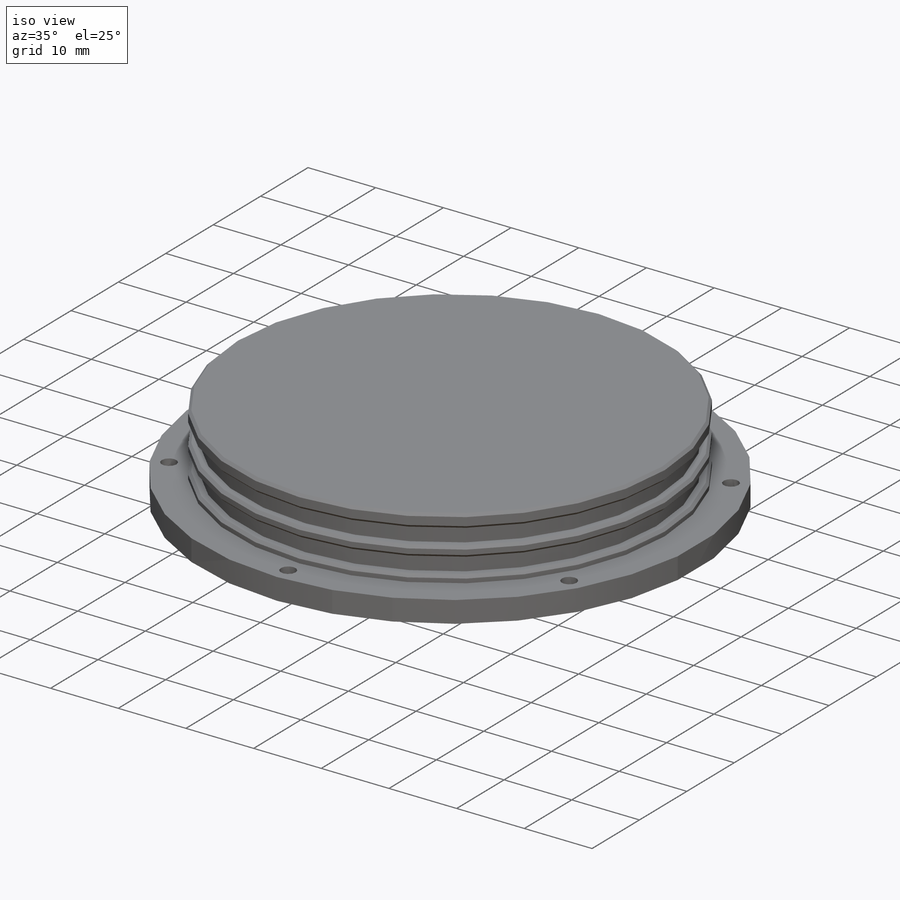
[diagram: iso view]
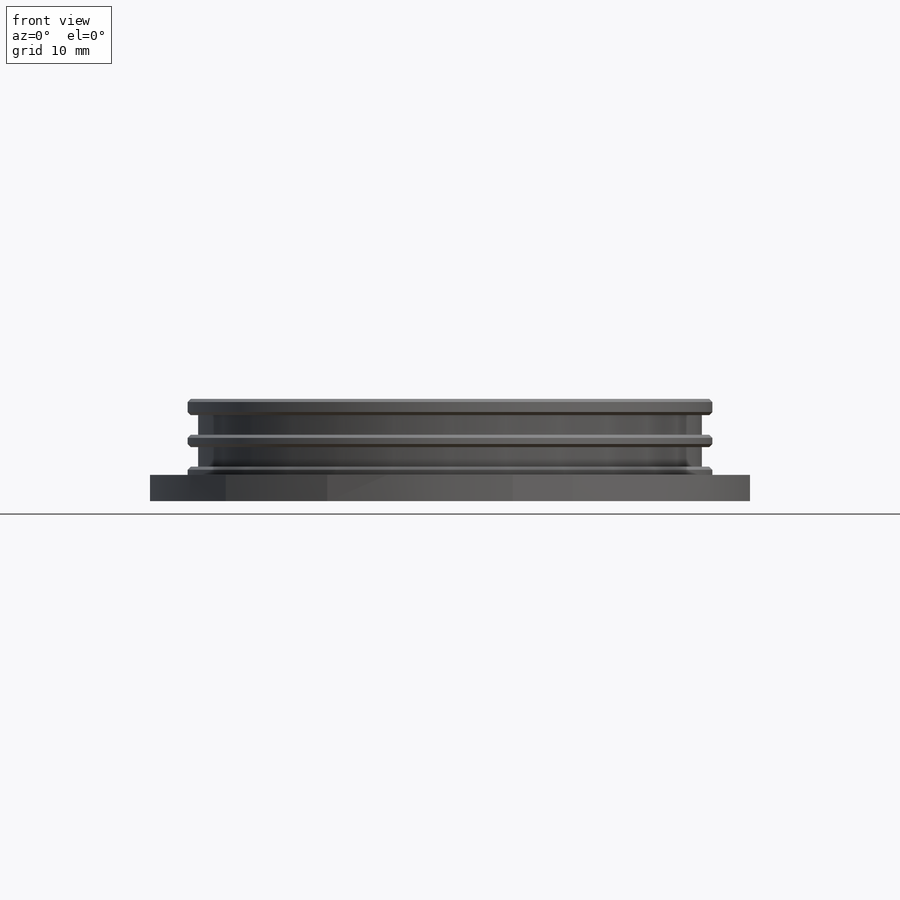
[diagram: front view]
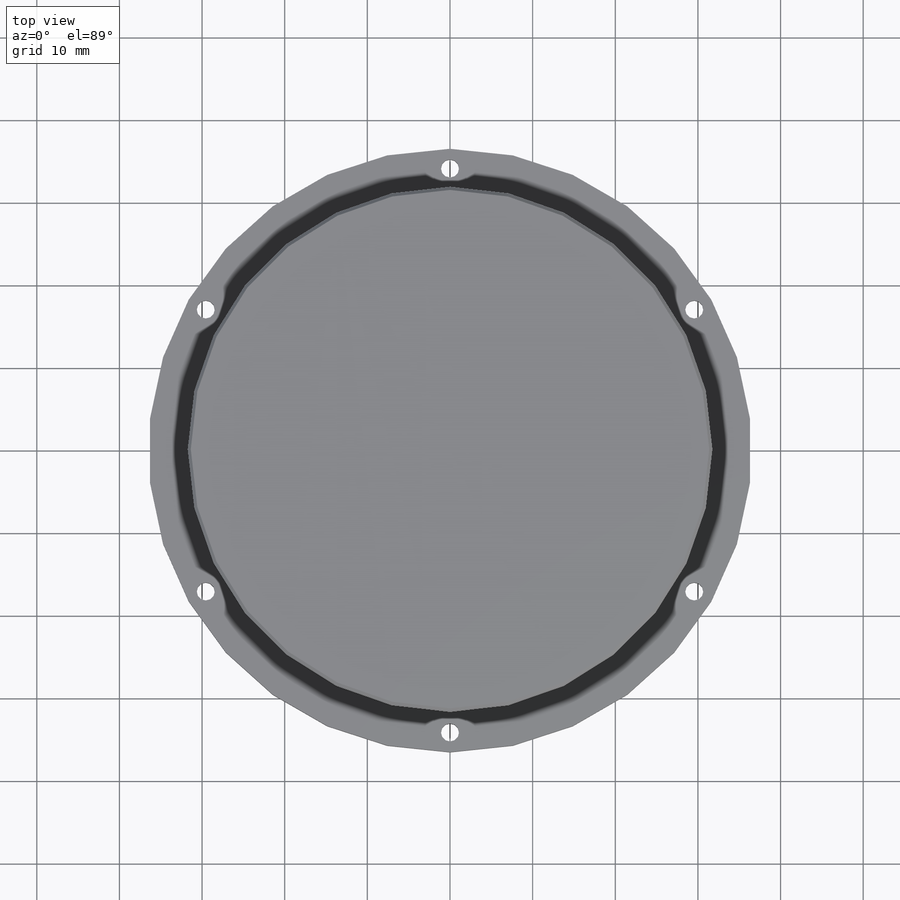
[diagram: top view]
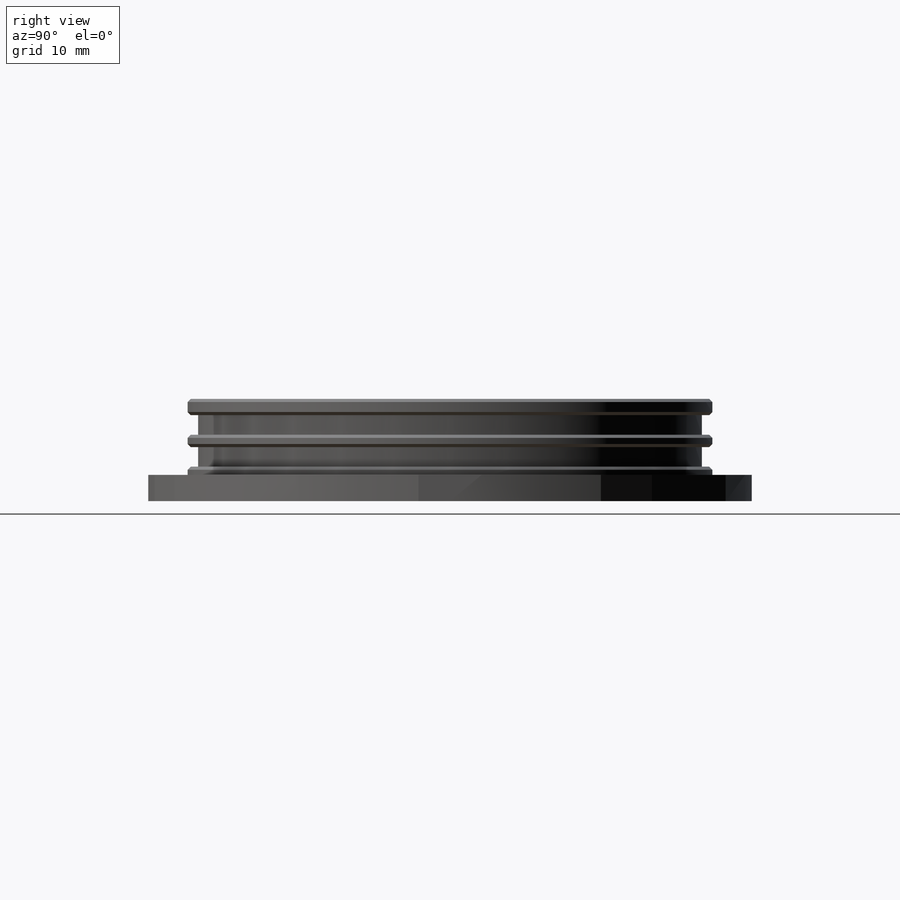
[diagram: right view]
SOLIDWORKS PART (.sldprt)
format: sldprt  version: not decoded by parser v0  size: 247,296 bytes
history: native  units: mm
features: sketch x7, extrude x2, material x1, cut_revolve x1, chamfer x1, hole x1 (+11 scaffold rows collapsed)
feature tree (24):
  scaffold x11  (default folders/planes/origin — collapsed)
  material  "Glass"
  sketch  "Sketch1"  dims[D1=42.8625mm]
  extrude  "Extrude1"  Depth=3.175mm
  sketch  "Sketch2"  dims[D1=38.1mm]
  extrude  "Extrude2"  Depth=9.2075mm
  sketch  "Sketch4"  dims[c1.D1=2.3622mm c1.D2=2.3622mm c1.D3=1.5875mm c1.D4=1.5875mm c2.D3=30.48mm]
  cut_revolve  "Cut-Revolve7"  Angle=360deg
  sketch  "Sketch6"  dims[D1=30.0deg]
  chamfer  "Chamfer1"  Distance=0.381mm Angle=45deg
  hole  "#2-56 Tapped Hole1"  Diameter=1.778mm Depth=5.588mm
  sketch  "3DSketch1"  dims[c1.D1=~40.406885mm c1.D2=34.29mm c2.D2=~40.327199mm c2.D6=34.29mm c2.D3=~40.376805mm c3.D2=34.29mm c3.D4=40.386mm c3.D1=34.29mm c3.D5=~40.45436mm c4.D1=34.29mm c4.D6=~40.420108mm c4.D8=34.29mm c4.D7=~67.078722mm c5.D6=68.2625mm c5.D1=~34.13125mm c5.D2=~34.13125mm c5.D3=~34.13125mm c5.D4=~34.13125mm c5.D5=~34.615736mm c6.D6=~34.13125mm c7.D6=~33.20504mm c7.D9=~33.20504mm c7.D8=~34.566824mm c7.D5=~34.13125mm c8.D6=~34.523907mm c8.D9=~34.082989mm c8.D5=~34.13125mm c9.D6=~34.13125mm c9.D7=~34.13125mm c9.D8=0.0mm c10.D8=~34.13125mm c10.D9=~34.13125mm c10.D10=~34.13125mm c10.D11=~34.13125mm c10.D12=~34.13125mm]
  sketch  "Sketch5"  dims[hole-wizard template sketch: 34 standard entries collapsed; hole parameters above]
  sketch  "Sketch7"
decode coverage: 11 of 12 modeling features carry decoded parameters
note: ~ marks probable driven/reference dimensions
note: suppression state not decoded; provenance and decode notes live in map.json
